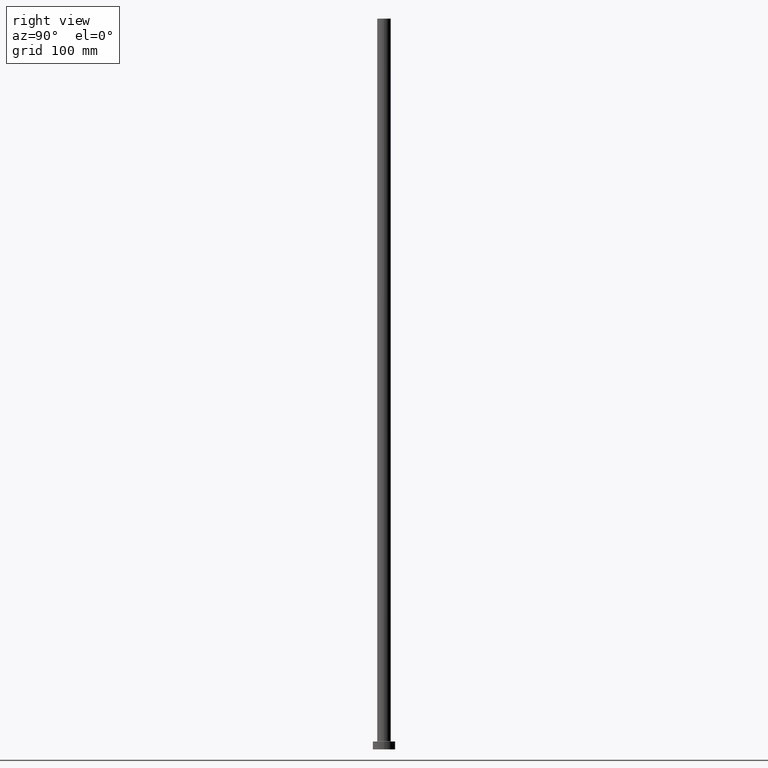
[diagram: clean part render]
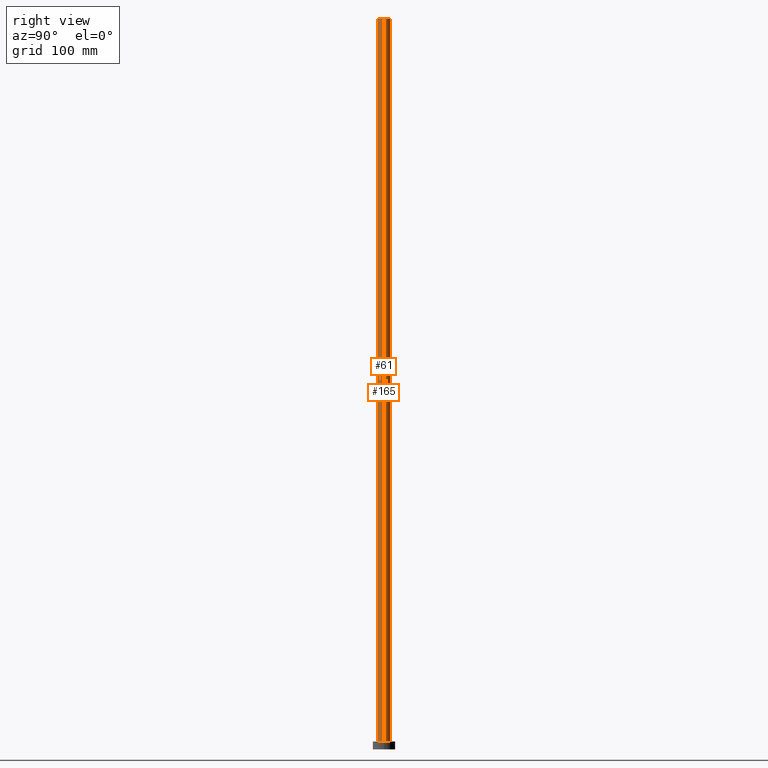
[diagram: same view with one multi-face feature highlighted, each face labeled with its STEP entity id]
A machine part, right view. The highlighted faces form ONE feature: a constant-radius fillet chain: 2 tangent blend faces with common blend radius 6 mm. The faces share edges in the B-rep.
Their STEP definitions:
[1] entity #165 (Cylinder):
#10 = CIRCLE ( 'NONE', #128, 6.000000000000000888 ) ;
#30 = DIRECTION ( 'NONE',  ( -0.000000000000000000, -0.000000000000000000, -1.000000000000000000 ) ) ;
#39 = VECTOR ( 'NONE', #30, 1000.000000000000000 ) ;
#42 = VERTEX_POINT ( 'NONE', #374 ) ;
#52 = ORIENTED_EDGE ( 'NONE', *, *, #405, .F. ) ;
#53 = CARTESIAN_POINT ( 'NONE',  ( 6.000000000000000888, 7.347880794884120722E-16, 650.0000000000000000 ) ) ;
#62 = VERTEX_POINT ( 'NONE', #266 ) ;
#68 = DIRECTION ( 'NONE',  ( 0.000000000000000000, 0.000000000000000000, 1.000000000000000000 ) ) ;
#82 = EDGE_CURVE ( 'NONE', #224, #62, #401, .T. ) ;
#92 = CYLINDRICAL_SURFACE ( 'NONE', #264, 6.000000000000000888 ) ;
#95 = LINE ( 'NONE', #356, #39 ) ;
#128 = AXIS2_PLACEMENT_3D ( 'NONE', #257, #214, #394 ) ;
#130 = DIRECTION ( 'NONE',  ( -1.000000000000000000, 0.000000000000000000, 0.000000000000000000 ) ) ;
#133 = ORIENTED_EDGE ( 'NONE', *, *, #267, .F. ) ;
#153 = CARTESIAN_POINT ( 'NONE',  ( 6.000000000000000888, 7.347880794884120722E-16, 650.0000000000000000 ) ) ;
#165 = ADVANCED_FACE ( 'NONE', ( #211 ), #92, .T. ) ;
#166 = ORIENTED_EDGE ( 'NONE', *, *, #82, .T. ) ;
#202 = CARTESIAN_POINT ( 'NONE',  ( -6.000000000000000888, 0.000000000000000000, 7.499999999999951150 ) ) ;
#203 = EDGE_LOOP ( 'NONE', ( #52, #166, #445, #133 ) ) ;
#211 = FACE_OUTER_BOUND ( 'NONE', #203, .T. ) ;
#214 = DIRECTION ( 'NONE',  ( 0.000000000000000000, 0.000000000000000000, 1.000000000000000000 ) ) ;
#224 = VERTEX_POINT ( 'NONE', #53 ) ;
#232 = VERTEX_POINT ( 'NONE', #202 ) ;
#257 = CARTESIAN_POINT ( 'NONE',  ( 0.000000000000000000, 0.000000000000000000, 650.0000000000000000 ) ) ;
#264 = AXIS2_PLACEMENT_3D ( 'NONE', #284, #415, #130 ) ;
#266 = CARTESIAN_POINT ( 'NONE',  ( 6.000000000000000888, 7.347880794884120722E-16, 7.499999999999951150 ) ) ;
#267 = EDGE_CURVE ( 'NONE', #42, #232, #95, .T. ) ;
#270 = AXIS2_PLACEMENT_3D ( 'NONE', #426, #68, #295 ) ;
#284 = CARTESIAN_POINT ( 'NONE',  ( 0.000000000000000000, 0.000000000000000000, 650.0000000000000000 ) ) ;
#287 = VECTOR ( 'NONE', #345, 1000.000000000000000 ) ;
#295 = DIRECTION ( 'NONE',  ( 1.000000000000000000, 0.000000000000000000, 0.000000000000000000 ) ) ;
#345 = DIRECTION ( 'NONE',  ( -0.000000000000000000, -0.000000000000000000, -1.000000000000000000 ) ) ;
#347 = CIRCLE ( 'NONE', #270, 6.000000000000000888 ) ;
#356 = CARTESIAN_POINT ( 'NONE',  ( -6.000000000000000888, 0.000000000000000000, 650.0000000000000000 ) ) ;
#374 = CARTESIAN_POINT ( 'NONE',  ( -6.000000000000000888, 0.000000000000000000, 650.0000000000000000 ) ) ;
#394 = DIRECTION ( 'NONE',  ( 1.000000000000000000, 0.000000000000000000, 0.000000000000000000 ) ) ;
#401 = LINE ( 'NONE', #153, #287 ) ;
#405 = EDGE_CURVE ( 'NONE', #224, #42, #10, .T. ) ;
#415 = DIRECTION ( 'NONE',  ( -0.000000000000000000, -0.000000000000000000, -1.000000000000000000 ) ) ;
#426 = CARTESIAN_POINT ( 'NONE',  ( 0.000000000000000000, 0.000000000000000000, 7.499999999999951150 ) ) ;
#429 = EDGE_CURVE ( 'NONE', #62, #232, #347, .T. ) ;
#445 = ORIENTED_EDGE ( 'NONE', *, *, #429, .T. ) ;
[2] entity #61 (Cylinder):
#8 = DIRECTION ( 'NONE',  ( 1.000000000000000000, 0.000000000000000000, 0.000000000000000000 ) ) ;
#16 = DIRECTION ( 'NONE',  ( -1.000000000000000000, 0.000000000000000000, 0.000000000000000000 ) ) ;
#26 = EDGE_LOOP ( 'NONE', ( #233, #131, #402, #441 ) ) ;
#30 = DIRECTION ( 'NONE',  ( -0.000000000000000000, -0.000000000000000000, -1.000000000000000000 ) ) ;
#39 = VECTOR ( 'NONE', #30, 1000.000000000000000 ) ;
#42 = VERTEX_POINT ( 'NONE', #374 ) ;
#46 = DIRECTION ( 'NONE',  ( -0.000000000000000000, -0.000000000000000000, -1.000000000000000000 ) ) ;
#53 = CARTESIAN_POINT ( 'NONE',  ( 6.000000000000000888, 7.347880794884120722E-16, 650.0000000000000000 ) ) ;
#61 = ADVANCED_FACE ( 'NONE', ( #403 ), #156, .T. ) ;
#62 = VERTEX_POINT ( 'NONE', #266 ) ;
#80 = CARTESIAN_POINT ( 'NONE',  ( 0.000000000000000000, 0.000000000000000000, 7.499999999999951150 ) ) ;
#82 = EDGE_CURVE ( 'NONE', #224, #62, #401, .T. ) ;
#95 = LINE ( 'NONE', #356, #39 ) ;
#98 = AXIS2_PLACEMENT_3D ( 'NONE', #371, #46, #16 ) ;
#126 = EDGE_CURVE ( 'NONE', #232, #62, #222, .T. ) ;
#131 = ORIENTED_EDGE ( 'NONE', *, *, #443, .F. ) ;
#135 = AXIS2_PLACEMENT_3D ( 'NONE', #176, #219, #327 ) ;
#153 = CARTESIAN_POINT ( 'NONE',  ( 6.000000000000000888, 7.347880794884120722E-16, 650.0000000000000000 ) ) ;
#156 = CYLINDRICAL_SURFACE ( 'NONE', #98, 6.000000000000000888 ) ;
#176 = CARTESIAN_POINT ( 'NONE',  ( 0.000000000000000000, 0.000000000000000000, 650.0000000000000000 ) ) ;
#189 = CIRCLE ( 'NONE', #135, 6.000000000000000888 ) ;
#202 = CARTESIAN_POINT ( 'NONE',  ( -6.000000000000000888, 0.000000000000000000, 7.499999999999951150 ) ) ;
#219 = DIRECTION ( 'NONE',  ( 0.000000000000000000, 0.000000000000000000, 1.000000000000000000 ) ) ;
#222 = CIRCLE ( 'NONE', #229, 6.000000000000000888 ) ;
#224 = VERTEX_POINT ( 'NONE', #53 ) ;
#229 = AXIS2_PLACEMENT_3D ( 'NONE', #80, #299, #8 ) ;
#232 = VERTEX_POINT ( 'NONE', #202 ) ;
#233 = ORIENTED_EDGE ( 'NONE', *, *, #82, .F. ) ;
#266 = CARTESIAN_POINT ( 'NONE',  ( 6.000000000000000888, 7.347880794884120722E-16, 7.499999999999951150 ) ) ;
#267 = EDGE_CURVE ( 'NONE', #42, #232, #95, .T. ) ;
#287 = VECTOR ( 'NONE', #345, 1000.000000000000000 ) ;
#299 = DIRECTION ( 'NONE',  ( 0.000000000000000000, 0.000000000000000000, 1.000000000000000000 ) ) ;
#327 = DIRECTION ( 'NONE',  ( 1.000000000000000000, 0.000000000000000000, 0.000000000000000000 ) ) ;
#345 = DIRECTION ( 'NONE',  ( -0.000000000000000000, -0.000000000000000000, -1.000000000000000000 ) ) ;
#356 = CARTESIAN_POINT ( 'NONE',  ( -6.000000000000000888, 0.000000000000000000, 650.0000000000000000 ) ) ;
#371 = CARTESIAN_POINT ( 'NONE',  ( 0.000000000000000000, 0.000000000000000000, 650.0000000000000000 ) ) ;
#374 = CARTESIAN_POINT ( 'NONE',  ( -6.000000000000000888, 0.000000000000000000, 650.0000000000000000 ) ) ;
#401 = LINE ( 'NONE', #153, #287 ) ;
#402 = ORIENTED_EDGE ( 'NONE', *, *, #267, .T. ) ;
#403 = FACE_OUTER_BOUND ( 'NONE', #26, .T. ) ;
#441 = ORIENTED_EDGE ( 'NONE', *, *, #126, .T. ) ;
#443 = EDGE_CURVE ( 'NONE', #42, #224, #189, .T. ) ;